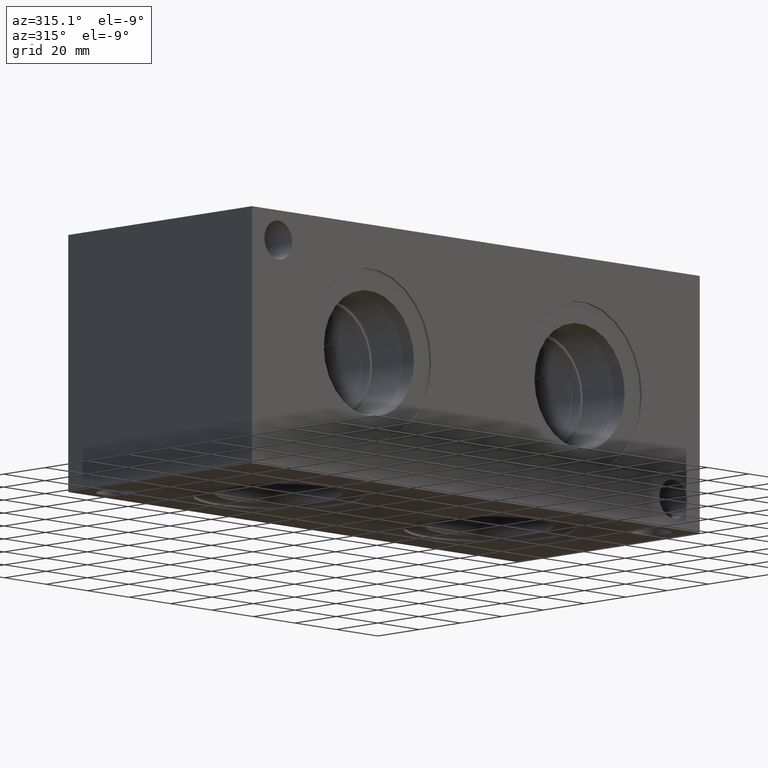
[diagram: clean part render]
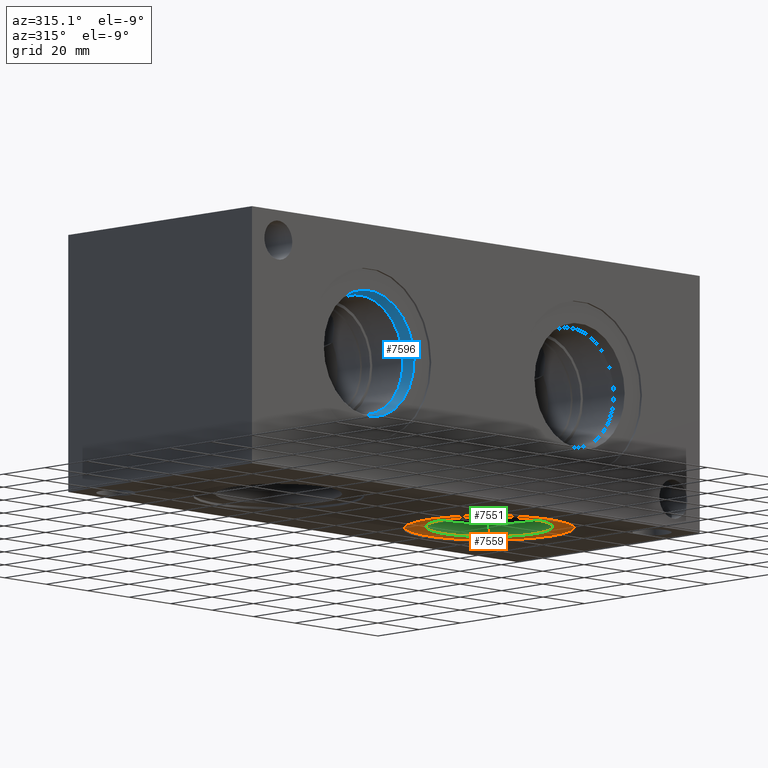
[diagram: same view with three faces highlighted in distinct colors, each labeled with its STEP entity id]
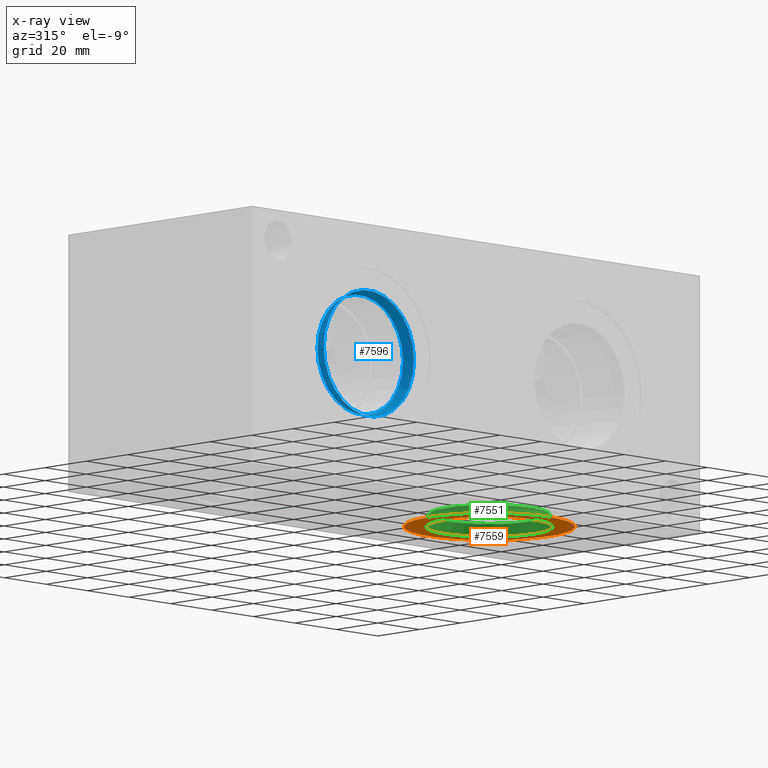
[diagram: x-ray of the same camera — body ghosted, the three highlighted faces saturated]
A machine part, auxiliary view with three faces highlighted in distinct colors.
The next image is the same camera in x-ray (body ghosted, the three faces saturated) — at least one of them is partly hidden behind the body in this view.
Their STEP definitions:

[orange] entity #7559 — the highlighted planar face has unit normal (0, 0, -1).
#171=CIRCLE('',#7939,29.2862);
#172=CIRCLE('',#7940,29.2862);
#173=CIRCLE('',#7941,21.7551);
#275=FACE_BOUND('',#1357,.T.);
#933=FACE_OUTER_BOUND('',#1356,.T.);
#1356=EDGE_LOOP('',(#6393,#6394));
#1357=EDGE_LOOP('',(#6395));
#3449=VERTEX_POINT('',#12906);
#3450=VERTEX_POINT('',#12907);
#3451=VERTEX_POINT('',#12910);
#4456=EDGE_CURVE('',#3449,#3450,#171,.T.);
#4457=EDGE_CURVE('',#3450,#3449,#172,.T.);
#4458=EDGE_CURVE('',#3451,#3451,#173,.T.);
#6393=ORIENTED_EDGE('',*,*,#4456,.T.);
#6394=ORIENTED_EDGE('',*,*,#4457,.T.);
#6395=ORIENTED_EDGE('',*,*,#4458,.F.);
#6920=PLANE('',#7938);
#7559=ADVANCED_FACE('',(#933,#275),#6920,.T.);
#7938=AXIS2_PLACEMENT_3D('',#12905,#9339,#9340);
#7939=AXIS2_PLACEMENT_3D('',#12908,#9341,#9342);
#7940=AXIS2_PLACEMENT_3D('',#12909,#9343,#9344);
#7941=AXIS2_PLACEMENT_3D('',#12911,#9345,#9346);
#9339=DIRECTION('center_axis',(0.,0.,-1.));
#9340=DIRECTION('ref_axis',(1.,0.,0.));
#9341=DIRECTION('center_axis',(0.,0.,-1.));
#9342=DIRECTION('ref_axis',(1.,0.,0.));
#9343=DIRECTION('center_axis',(0.,0.,-1.));
#9344=DIRECTION('ref_axis',(1.,0.,0.));
#9345=DIRECTION('center_axis',(0.,0.,-1.));
#9346=DIRECTION('ref_axis',(1.,0.,0.));
#12905=CARTESIAN_POINT('Origin',(158.75,44.45,0.7874));
#12906=CARTESIAN_POINT('',(188.0362,44.45,0.7874));
#12907=CARTESIAN_POINT('',(129.4638,44.45,0.7874));
#12908=CARTESIAN_POINT('Origin',(158.75,44.45,0.7874));
#12909=CARTESIAN_POINT('Origin',(158.75,44.45,0.7874));
#12910=CARTESIAN_POINT('',(136.9949,44.45,0.7874));
#12911=CARTESIAN_POINT('Origin',(158.75,44.45,0.7874));

[blue] entity #7596 — the highlighted conical surface has half-angle 15 deg.
#44=CONICAL_SURFACE('',#8029,10.87755,0.261799387799149);
#205=CIRCLE('',#8015,20.6375);
#213=CIRCLE('',#8030,21.7551);
#214=CIRCLE('',#8031,21.7551);
#970=FACE_OUTER_BOUND('',#1398,.T.);
#1398=EDGE_LOOP('',(#6583,#6584,#6585,#6586,#6587));
#2108=LINE('',#13130,#2802);
#2802=VECTOR('',#9549,10.87755);
#3487=VERTEX_POINT('',#13098);
#3495=VERTEX_POINT('',#13127);
#3496=VERTEX_POINT('',#13128);
#4524=EDGE_CURVE('',#3487,#3487,#205,.T.);
#4538=EDGE_CURVE('',#3495,#3496,#213,.T.);
#4539=EDGE_CURVE('',#3496,#3487,#2108,.T.);
#4540=EDGE_CURVE('',#3496,#3495,#214,.T.);
#6583=ORIENTED_EDGE('',*,*,#4538,.T.);
#6584=ORIENTED_EDGE('',*,*,#4539,.T.);
#6585=ORIENTED_EDGE('',*,*,#4524,.T.);
#6586=ORIENTED_EDGE('',*,*,#4539,.F.);
#6587=ORIENTED_EDGE('',*,*,#4540,.T.);
#7596=ADVANCED_FACE('',(#970),#44,.F.);
#8015=AXIS2_PLACEMENT_3D('',#13099,#9511,#9512);
#8029=AXIS2_PLACEMENT_3D('',#13126,#9545,#9546);
#8030=AXIS2_PLACEMENT_3D('',#13129,#9547,#9548);
#8031=AXIS2_PLACEMENT_3D('',#13131,#9550,#9551);
#9511=DIRECTION('center_axis',(0.,1.,0.));
#9512=DIRECTION('ref_axis',(1.,0.,0.));
#9545=DIRECTION('center_axis',(0.,-1.,0.));
#9546=DIRECTION('ref_axis',(1.,0.,0.));
#9547=DIRECTION('center_axis',(0.,-1.,0.));
#9548=DIRECTION('ref_axis',(1.,0.,0.));
#9549=DIRECTION('',(0.258819045102521,0.965925826289068,3.16961915143176E-17));
#9550=DIRECTION('center_axis',(0.,-1.,0.));
#9551=DIRECTION('ref_axis',(1.,0.,0.));
#13098=CARTESIAN_POINT('',(36.5125,4.97099998253897,44.45));
#13099=CARTESIAN_POINT('Origin',(57.15,4.97099998253897,44.45));
#13126=CARTESIAN_POINT('Origin',(57.15,41.3956292618708,44.45));
#13127=CARTESIAN_POINT('',(78.9051,0.80006,44.45));
#13128=CARTESIAN_POINT('',(35.3949,0.800060000000009,44.45));
#13129=CARTESIAN_POINT('Origin',(57.15,0.80006,44.45));
#13130=CARTESIAN_POINT('',(46.27245,41.3956292618708,44.45));
#13131=CARTESIAN_POINT('Origin',(57.15,0.80006,44.45));

[green] entity #7551 — the highlighted conical surface has half-angle 15 deg.
#25=CONICAL_SURFACE('',#7912,10.87755,0.261799387799149);
#158=CIRCLE('',#7907,20.6375);
#161=CIRCLE('',#7913,21.7551);
#162=CIRCLE('',#7914,21.7551);
#925=FACE_OUTER_BOUND('',#1347,.T.);
#1347=EDGE_LOOP('',(#6361,#6362,#6363,#6364,#6365));
#2081=LINE('',#12866,#2775);
#2775=VECTOR('',#9288,10.87755);
#3432=VERTEX_POINT('',#12851);
#3435=VERTEX_POINT('',#12863);
#3436=VERTEX_POINT('',#12864);
#4429=EDGE_CURVE('',#3432,#3432,#158,.T.);
#4435=EDGE_CURVE('',#3435,#3436,#161,.T.);
#4436=EDGE_CURVE('',#3436,#3432,#2081,.T.);
#4437=EDGE_CURVE('',#3436,#3435,#162,.T.);
#6361=ORIENTED_EDGE('',*,*,#4435,.T.);
#6362=ORIENTED_EDGE('',*,*,#4436,.T.);
#6363=ORIENTED_EDGE('',*,*,#4429,.T.);
#6364=ORIENTED_EDGE('',*,*,#4436,.F.);
#6365=ORIENTED_EDGE('',*,*,#4437,.T.);
#7551=ADVANCED_FACE('',(#925),#25,.F.);
#7907=AXIS2_PLACEMENT_3D('',#12852,#9271,#9272);
#7912=AXIS2_PLACEMENT_3D('',#12862,#9284,#9285);
#7913=AXIS2_PLACEMENT_3D('',#12865,#9286,#9287);
#7914=AXIS2_PLACEMENT_3D('',#12867,#9289,#9290);
#9271=DIRECTION('center_axis',(0.,0.,1.));
#9272=DIRECTION('ref_axis',(1.,0.,0.));
#9284=DIRECTION('center_axis',(0.,0.,-1.));
#9285=DIRECTION('ref_axis',(1.,0.,0.));
#9286=DIRECTION('center_axis',(0.,0.,-1.));
#9287=DIRECTION('ref_axis',(1.,0.,0.));
#9288=DIRECTION('',(0.258819045102521,-3.16961915143176E-17,0.965925826289068));
#9289=DIRECTION('center_axis',(0.,0.,-1.));
#9290=DIRECTION('ref_axis',(1.,0.,0.));
#12851=CARTESIAN_POINT('',(138.1125,44.45,4.97099998253897));
#12852=CARTESIAN_POINT('Origin',(158.75,44.45,4.97099998253897));
#12862=CARTESIAN_POINT('Origin',(158.75,44.45,41.3956292618708));
#12863=CARTESIAN_POINT('',(180.5051,44.45,0.80006));
#12864=CARTESIAN_POINT('',(136.9949,44.45,0.800060000000009));
#12865=CARTESIAN_POINT('Origin',(158.75,44.45,0.80006));
#12866=CARTESIAN_POINT('',(147.87245,44.45,41.3956292618708));
#12867=CARTESIAN_POINT('Origin',(158.75,44.45,0.80006));